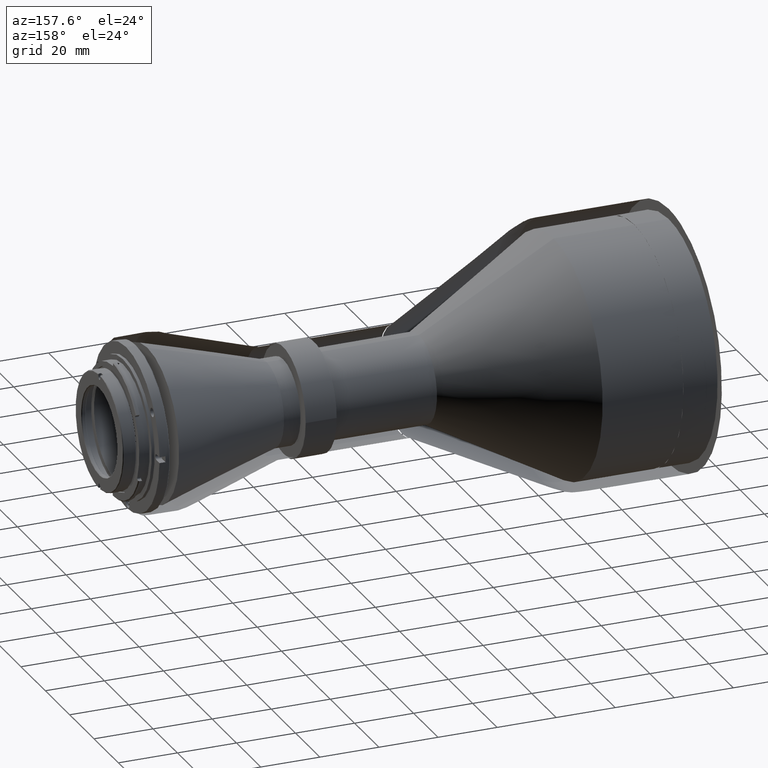
[diagram: clean part render]
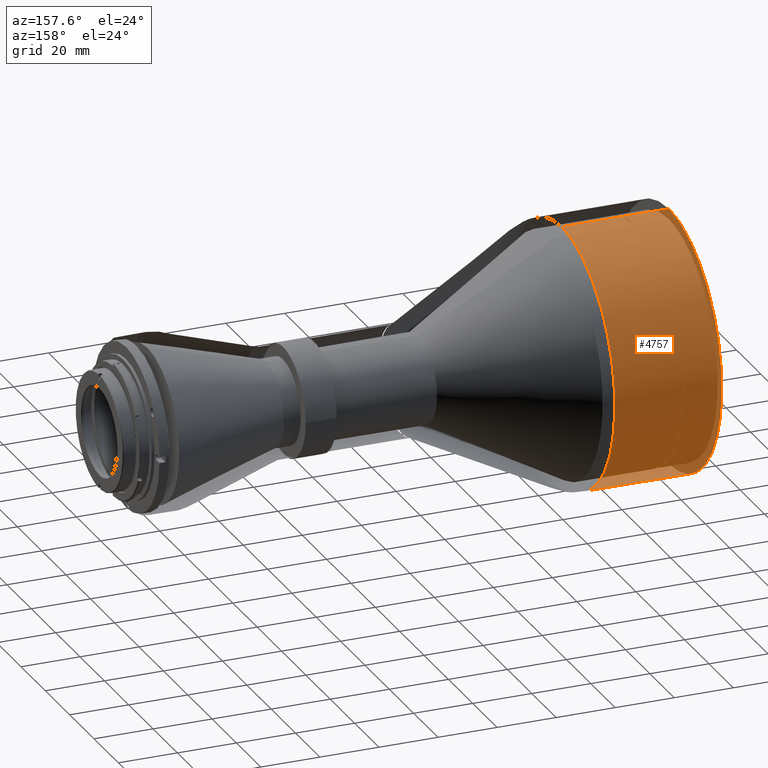
[diagram: same view with one face highlighted and labeled with its STEP entity id]
A machine part, auxiliary view. The second image highlights one B-rep face of the part: STEP entity #4757.
In plain terms, the highlighted cylindrical surface (partial cylindrical patch) has radius 43.7 mm, axis along (1, 0, 0).
Its self-contained STEP definition (entity closure, byte-faithful):
#280 = CARTESIAN_POINT ( 'NONE',  ( -24.05529752000000698, 43.69996389106649559, -166.9804314082603014 ) ) ;
#353 = CARTESIAN_POINT ( 'NONE',  ( -5.938034188999989915, 9.998810894577774843E-10, -120.4114151909222983 ) ) ;
#373 = CARTESIAN_POINT ( 'NONE',  ( -24.05529752000000343, 21.89290990342585985, -126.1822073116891971 ) ) ;
#374 = CARTESIAN_POINT ( 'NONE',  ( 12.17900414374882523, 43.69937423061161752, -163.8775522848590924 ) ) ;
#432 = AXIS2_PLACEMENT_3D ( 'NONE', #8984, #6777, #8186 ) ;
#742 = CARTESIAN_POINT ( 'NONE',  ( -24.05529751999999988, 21.89289931975238446, -202.0405472329132408 ) ) ;
#836 = CARTESIAN_POINT ( 'NONE',  ( -24.05529752000000343, 39.27557723669417555, -183.4852927286013085 ) ) ;
#927 = CARTESIAN_POINT ( 'NONE',  ( -24.05529752289874779, -2.675853255814569971E-15, -207.8114151900000195 ) ) ;
#1023 = CARTESIAN_POINT ( 'NONE',  ( -24.05529752000000698, 26.66392846375873305, -129.3701789554584707 ) ) ;
#1091 = ORIENTED_EDGE ( 'NONE', *, *, #1217, .F. ) ;
#1118 = CARTESIAN_POINT ( 'NONE',  ( 12.17900414270829934, 41.54283125169751401, -177.9701192126535432 ) ) ;
#1168 = CARTESIAN_POINT ( 'NONE',  ( -24.05529751999999988, 39.27563751722323104, -144.7374944676038808 ) ) ;
#1175 = B_SPLINE_CURVE_WITH_KNOTS ( 'NONE', 3,
 ( #374, #7584, #6829, #4806, #1118, #4759, #9176, #9038, #8989, #1926, #1212, #7676, #4098, #3245, #3432, #6314, #7724, #2532 ),
 .UNSPECIFIED., .F., .F.,
 ( 4, 2, 2, 2, 2, 2, 2, 2, 4 ),
 ( 0.4991468162992170887, 0.5617534642618149388, 0.6243601122244127888, 0.6869667601870106388, 0.7495734081496085999, 0.8121800561122063389, 0.8747867040748042999, 0.9373933520374021500, 1.000000000000000000 ),
 .UNSPECIFIED. ) ;
#1212 = CARTESIAN_POINT ( 'NONE',  ( 12.17900414347953308, 26.84211837120223620, -198.7144668901388513 ) ) ;
#1217 = EDGE_CURVE ( 'NONE', #2002, #8691, #7870, .T. ) ;
#1250 = CARTESIAN_POINT ( 'NONE',  ( 12.17900414460054392, 5.700758428454959059, -120.6911870340485677 ) ) ;
#1292 = EDGE_LOOP ( 'NONE', ( #7673, #1091, #7041, #8099, #7803, #4519 ) ) ;
#1493 = CARTESIAN_POINT ( 'NONE',  ( -24.05529752000001054, 37.92919208940669762, -186.0043546325355521 ) ) ;
#1777 = CARTESIAN_POINT ( 'NONE',  ( -24.05529751999999988, 34.74129082498967591, -137.4474502531556652 ) ) ;
#1781 = DIRECTION ( 'NONE',  ( 1.000000000000000000, 0.000000000000000000, 0.000000000000000000 ) ) ;
#1813 = CARTESIAN_POINT ( 'NONE',  ( 12.17900414474808990, 2.850413978410307525, -120.4114151908639201 ) ) ;
#1926 = CARTESIAN_POINT ( 'NONE',  ( 12.17900414336264703, 29.05390470324786634, -196.8794045562886765 ) ) ;
#2002 = VERTEX_POINT ( 'NONE', #2607 ) ;
#2169 = CARTESIAN_POINT ( 'NONE',  ( -24.05529752386500064, 9.998786579289580097E-10, -120.4114151909481905 ) ) ;
#2202 = CARTESIAN_POINT ( 'NONE',  ( -24.05529751999999988, 28.87183998201845370, -197.0406568182703779 ) ) ;
#2342 = CARTESIAN_POINT ( 'NONE',  ( -24.05529752000000698, 2.869197761243929001, -207.8114151900000195 ) ) ;
#2443 = CARTESIAN_POINT ( 'NONE',  ( -5.938034188999989915, 5.048709793414475555E-25, -207.8114151899996784 ) ) ;
#2524 = CARTESIAN_POINT ( 'NONE',  ( 12.17900414308607360, 34.66229061194594152, -137.3468776572274805 ) ) ;
#2532 = CARTESIAN_POINT ( 'NONE',  ( 12.17900414489909977, 0.2338629052389725183, -207.8107894207030029 ) ) ;
#2569 = CARTESIAN_POINT ( 'NONE',  ( 12.17900414284496158, 39.20472145055097002, -144.5971979162582102 ) ) ;
#2580 = CARTESIAN_POINT ( 'NONE',  ( -24.05529752000000343, 43.70003610892442225, -161.2423989737395971 ) ) ;
#2607 = CARTESIAN_POINT ( 'NONE',  ( -24.05529752289874779, -2.675853255814569971E-15, -207.8114151900000195 ) ) ;
#2617 = CARTESIAN_POINT ( 'NONE',  ( 12.17900414272708254, 41.40745581847752277, -149.8552774777348304 ) ) ;
#2780 = VERTEX_POINT ( 'NONE', #6060 ) ;
#3083 = VECTOR ( 'NONE', #1781, 1000.000000000000000 ) ;
#3092 = CARTESIAN_POINT ( 'NONE',  ( 12.17900414489909977, 0.2338629052389725183, -207.8107894207030029 ) ) ;
#3112 = EDGE_CURVE ( 'NONE', #8691, #5192, #3931, .T. ) ;
#3143 = CARTESIAN_POINT ( 'NONE',  ( -24.05529752000000698, 28.87186515746157767, -131.1821012485146980 ) ) ;
#3220 = DIRECTION ( 'NONE',  ( 1.000000000000000000, 0.000000000000000000, 0.000000000000000000 ) ) ;
#3231 = CARTESIAN_POINT ( 'NONE',  ( 12.17900414389284869, 19.30413165792063879, -124.8028237535230858 ) ) ;
#3243 = CARTESIAN_POINT ( 'NONE',  ( -24.05529752000000343, 37.92915329096956611, -142.2185417633207294 ) ) ;
#3245 = CARTESIAN_POINT ( 'NONE',  ( 12.17900414414562427, 14.30254125211158467, -205.5035378626938041 ) ) ;
#3279 = CARTESIAN_POINT ( 'NONE',  ( 12.17900414351191785, 26.57865715820928543, -129.3063890664359121 ) ) ;
#3380 = CARTESIAN_POINT ( 'NONE',  ( 12.17900414339536397, 28.79683938656131659, -131.1181294920937717 ) ) ;
#3432 = CARTESIAN_POINT ( 'NONE',  ( 12.17900414429214528, 11.55686917711174821, -206.3525004085728369 ) ) ;
#3571 = CARTESIAN_POINT ( 'NONE',  ( 12.17900414489909977, 0.2338629052389725183, -207.8107894207030029 ) ) ;
#3717 = CARTESIAN_POINT ( 'NONE',  ( -24.05529752000000343, 11.33934299154105751, -206.4120500611384728 ) ) ;
#3864 = CARTESIAN_POINT ( 'NONE',  ( -24.05529752000000343, 11.33952729632823520, -121.8108872684458532 ) ) ;
#3901 = CYLINDRICAL_SURFACE ( 'NONE', #432, 43.69999999953869008 ) ;
#3906 = CARTESIAN_POINT ( 'NONE',  ( -24.05529752000000343, 19.37390959067296237, -124.8358476780378368 ) ) ;
#3931 = LINE ( 'NONE', #353, #6496 ) ;
#4098 = CARTESIAN_POINT ( 'NONE',  ( 12.17900414386487107, 19.57563409423159939, -203.2862164712804258 ) ) ;
#4105 = B_SPLINE_CURVE_WITH_KNOTS ( 'NONE', 3,
 ( #5502, #1813, #1250, #6262, #8230, #3231, #8931, #3279, #3380, #7622, #2524, #6915, #2569, #2617, #4647, #8321, #6211, #4744 ),
 .UNSPECIFIED., .F., .F.,
 ( 4, 2, 2, 2, 2, 2, 2, 2, 4 ),
 ( 0.000000000000000000, 0.06239335203740213609, 0.1247867040748042722, 0.1871800561122063944, 0.2495734081496085444, 0.3119667601870106943, 0.3743601122244127888, 0.4367534642618149388, 0.4991468162992170887 ),
 .UNSPECIFIED. ) ;
#4128 = CARTESIAN_POINT ( 'NONE',  ( 12.17900414374882523, 43.69937423061161752, -163.8775522848590924 ) ) ;
#4293 = VERTEX_POINT ( 'NONE', #4128 ) ;
#4470 = CARTESIAN_POINT ( 'NONE',  ( 12.17900414586291902, 9.998787422757699443E-10, -120.4114151908859895 ) ) ;
#4510 = CARTESIAN_POINT ( 'NONE',  ( 12.17900414586544500, 0.1559093464286076258, -207.8112065991921042 ) ) ;
#4519 = ORIENTED_EDGE ( 'NONE', *, *, #9044, .F. ) ;
#4647 = CARTESIAN_POINT ( 'NONE',  ( 12.17900414268158471, 42.25075246036754351, -152.5923537539675863 ) ) ;
#4654 = CARTESIAN_POINT ( 'NONE',  ( -24.05529751999999988, 42.30063487115615573, -152.7720721993655104 ) ) ;
#4744 = CARTESIAN_POINT ( 'NONE',  ( 12.17900414374882523, 43.69937423061161752, -163.8775522848590924 ) ) ;
#4757 = ADVANCED_FACE ( 'NONE', ( #5459 ), #3901, .F. ) ;
#4759 = CARTESIAN_POINT ( 'NONE',  ( 12.17900414282034838, 39.38207453730935015, -183.2666419111475875 ) ) ;
#4806 = CARTESIAN_POINT ( 'NONE',  ( 12.17900414266617837, 42.36235836721346715, -175.2155179974730288 ) ) ;
#5078 = CARTESIAN_POINT ( 'NONE',  ( -24.05529752000001054, 32.92929269326576502, -192.9833062384305720 ) ) ;
#5122 = CARTESIAN_POINT ( 'NONE',  ( -24.05529752000001054, 19.37390517380351085, -203.3870591479080758 ) ) ;
#5192 = VERTEX_POINT ( 'NONE', #4470 ) ;
#5219 = CARTESIAN_POINT ( 'NONE',  ( -24.05529751999999988, 5.711551152491452399, -207.5314138263166512 ) ) ;
#5261 = CARTESIAN_POINT ( 'NONE',  ( 12.17900414779822071, -1.862286108067239950E-10, -207.8114151899569890 ) ) ;
#5266 = CARTESIAN_POINT ( 'NONE',  ( -24.05529751999999988, 26.66393904576951357, -198.8527272630501272 ) ) ;
#5326 = EDGE_CURVE ( 'NONE', #2002, #2780, #8898, .T. ) ;
#5363 = CARTESIAN_POINT ( 'NONE',  ( -24.05529752000000343, 43.41999863629156664, -158.3998640386016916 ) ) ;
#5459 = FACE_OUTER_BOUND ( 'NONE', #1292, .T. ) ;
#5464 = CARTESIAN_POINT ( 'NONE',  ( -24.05529752000000343, 41.47143362471374672, -150.0388039259957509 ) ) ;
#5502 = CARTESIAN_POINT ( 'NONE',  ( 12.17900414586291902, 9.998787422757699443E-10, -120.4114151908859895 ) ) ;
#5989 = VERTEX_POINT ( 'NONE', #3571 ) ;
#6060 = CARTESIAN_POINT ( 'NONE',  ( 12.17900414779822071, -1.862286108067239950E-10, -207.8114151899569890 ) ) ;
#6072 = CARTESIAN_POINT ( 'NONE',  ( -24.05529752000000698, 43.42006946634800357, -169.8229804322739369 ) ) ;
#6122 = CARTESIAN_POINT ( 'NONE',  ( -24.05529752000000698, 2.869551158999878115, -120.4114151910000174 ) ) ;
#6211 = CARTESIAN_POINT ( 'NONE',  ( 12.17900414260253328, 43.68412008657475099, -161.0271791244281019 ) ) ;
#6262 = CARTESIAN_POINT ( 'NONE',  ( 12.17900414431033695, 11.29278930907742229, -121.7996228691907277 ) ) ;
#6314 = CARTESIAN_POINT ( 'NONE',  ( 12.17900414459198011, 5.952519391087908396, -207.4984872105611942 ) ) ;
#6496 = VECTOR ( 'NONE', #3220, 1000.000000000000000 ) ;
#6535 = EDGE_CURVE ( 'NONE', #2780, #5989, #8255, .T. ) ;
#6777 = DIRECTION ( 'NONE',  ( 1.000000000000000000, 0.000000000000000000, 0.000000000000000000 ) ) ;
#6781 = CARTESIAN_POINT ( 'NONE',  ( -24.05529752000000343, 5.711366849665561851, -120.6913096064891704 ) ) ;
#6829 = CARTESIAN_POINT ( 'NONE',  ( 12.17900414261125697, 43.44829642835975392, -169.5992237742516409 ) ) ;
#6915 = CARTESIAN_POINT ( 'NONE',  ( 12.17900414291733568, 37.84533745365973800, -142.0763228862070946 ) ) ;
#7041 = ORIENTED_EDGE ( 'NONE', *, *, #5326, .T. ) ;
#7487 = CARTESIAN_POINT ( 'NONE',  ( -24.05529752000000343, 42.30056404070960241, -175.4507440937200897 ) ) ;
#7529 = CARTESIAN_POINT ( 'NONE',  ( -24.05529752386500064, 9.998786579289580097E-10, -120.4114151909481905 ) ) ;
#7584 = CARTESIAN_POINT ( 'NONE',  ( 12.17900414259845299, 43.71468052203154997, -166.7376696401528307 ) ) ;
#7622 = CARTESIAN_POINT ( 'NONE',  ( 12.17900414318243385, 32.83870540807221516, -135.1384228190312911 ) ) ;
#7673 = ORIENTED_EDGE ( 'NONE', *, *, #3112, .F. ) ;
#7676 = CARTESIAN_POINT ( 'NONE',  ( 12.17900414373065132, 22.10292447373999991, -201.9179124533868332 ) ) ;
#7724 = CARTESIAN_POINT ( 'NONE',  ( 12.17900414474528858, 3.093980258656394700, -207.7954831298885665 ) ) ;
#7803 = ORIENTED_EDGE ( 'NONE', *, *, #8738, .F. ) ;
#7870 = B_SPLINE_CURVE_WITH_KNOTS ( 'NONE', 3,
 ( #927, #2342, #5219, #3717, #8847, #5122, #742, #5266, #2202, #5078, #8000, #1493, #836, #8237, #7487, #6072, #280, #2580, #5363, #4654, #5464, #1168, #3243, #1777, #9090, #3143, #1023, #373, #3906, #8283, #3864, #6781, #6122, #7529 ),
 .UNSPECIFIED., .F., .F.,
 ( 4, 2, 2, 2, 2, 2, 2, 2, 2, 2, 2, 2, 2, 2, 2, 2, 4 ),
 ( 0.000000000000000000, 0.06250000000000001388, 0.1250000000000000278, 0.1875000000000000555, 0.2500000000000000555, 0.3125000000000000000, 0.3749999999999999445, 0.4374999999999999445, 0.4999999999999998890, 0.5624999999999998890, 0.6249999999999998890, 0.6874999999999998890, 0.7499999999999998890, 0.8125000000000000000, 0.8750000000000000000, 0.9375000000000000000, 1.000000000000000000 ),
 .UNSPECIFIED. ) ;
#8000 = CARTESIAN_POINT ( 'NONE',  ( -24.05529751999999988, 34.74125202544155400, -190.7753141146506835 ) ) ;
#8099 = ORIENTED_EDGE ( 'NONE', *, *, #6535, .T. ) ;
#8186 = DIRECTION ( 'NONE',  ( 0.000000000000000000, -1.144022583251510230E-11, -1.000000000000000000 ) ) ;
#8230 = CARTESIAN_POINT ( 'NONE',  ( 12.17900414416768839, 14.03433933871465555, -122.6282598241569559 ) ) ;
#8237 = CARTESIAN_POINT ( 'NONE',  ( -24.05529752000000343, 41.47149390447754058, -178.1840696416464880 ) ) ;
#8255 = B_SPLINE_CURVE_WITH_KNOTS ( 'NONE', 3,
 ( #5261, #8659, #4510, #3092 ),
 .UNSPECIFIED., .F., .F.,
 ( 4, 4 ),
 ( 0.000000000000000000, 1.000000000000000000 ),
 .UNSPECIFIED. ) ;
#8283 = CARTESIAN_POINT ( 'NONE',  ( -24.05529751999999988, 14.07262239957403516, -122.6399115627847607 ) ) ;
#8321 = CARTESIAN_POINT ( 'NONE',  ( 12.17900414261930742, 43.38909847769672723, -158.1783727044630155 ) ) ;
#8659 = CARTESIAN_POINT ( 'NONE',  ( 12.17900414683182753, 0.07795467321483541545, -207.8114151900005595 ) ) ;
#8691 = VERTEX_POINT ( 'NONE', #2169 ) ;
#8738 = EDGE_CURVE ( 'NONE', #4293, #5989, #1175, .T. ) ;
#8847 = CARTESIAN_POINT ( 'NONE',  ( -24.05529751999999633, 14.07262681459598497, -205.5828423740345272 ) ) ;
#8898 = LINE ( 'NONE', #2443, #3083 ) ;
#8931 = CARTESIAN_POINT ( 'NONE',  ( 12.17900414376066820, 21.83224540659887580, -126.1486976859116993 ) ) ;
#8984 = CARTESIAN_POINT ( 'NONE',  ( -5.938034188999989915, 4.999378688756329930E-10, -164.1114151904610026 ) ) ;
#8989 = CARTESIAN_POINT ( 'NONE',  ( 12.17900414315057134, 33.07707509232921694, -192.8129414376982140 ) ) ;
#9038 = CARTESIAN_POINT ( 'NONE',  ( 12.17900414305539414, 34.88835966854897208, -190.5816412042720174 ) ) ;
#9044 = EDGE_CURVE ( 'NONE', #5192, #4293, #4105, .T. ) ;
#9090 = CARTESIAN_POINT ( 'NONE',  ( -24.05529752000000343, 32.92926751923670281, -135.2395964581982923 ) ) ;
#9176 = CARTESIAN_POINT ( 'NONE',  ( 12.17900414289027999, 38.04089836740494945, -185.8084324275002075 ) ) ;